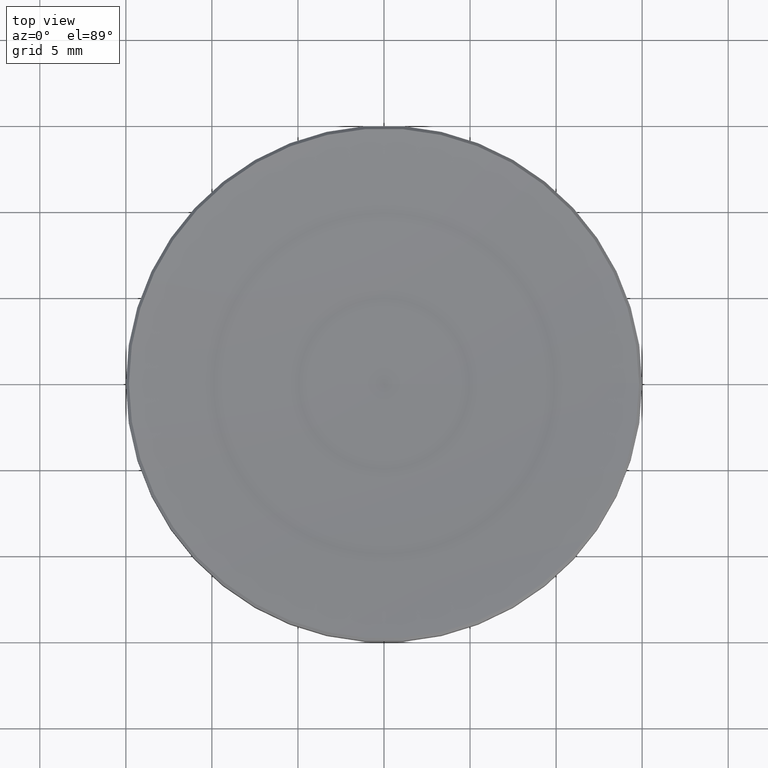
[diagram: clean part render]
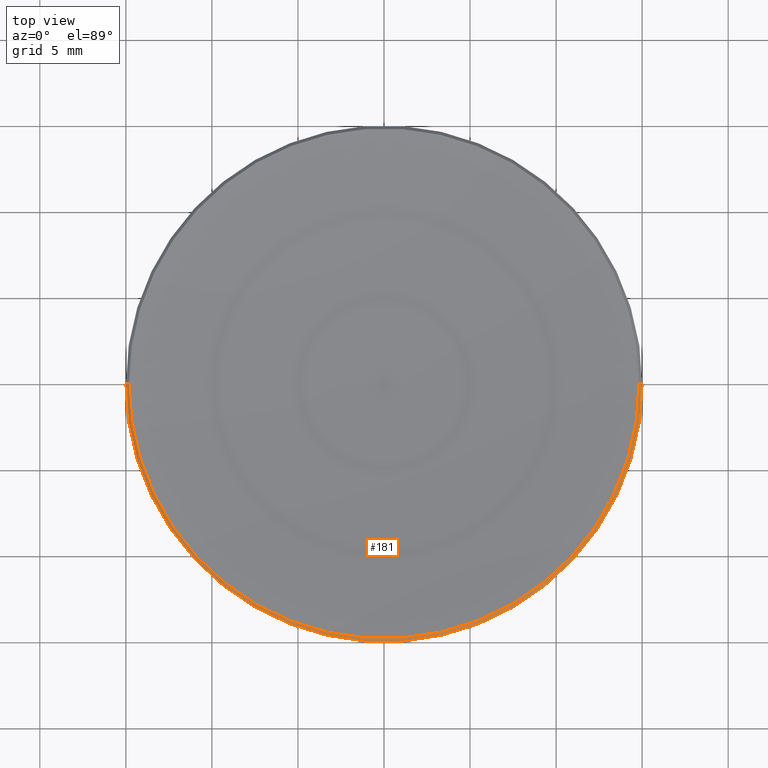
[diagram: same view with one face highlighted and labeled with its STEP entity id]
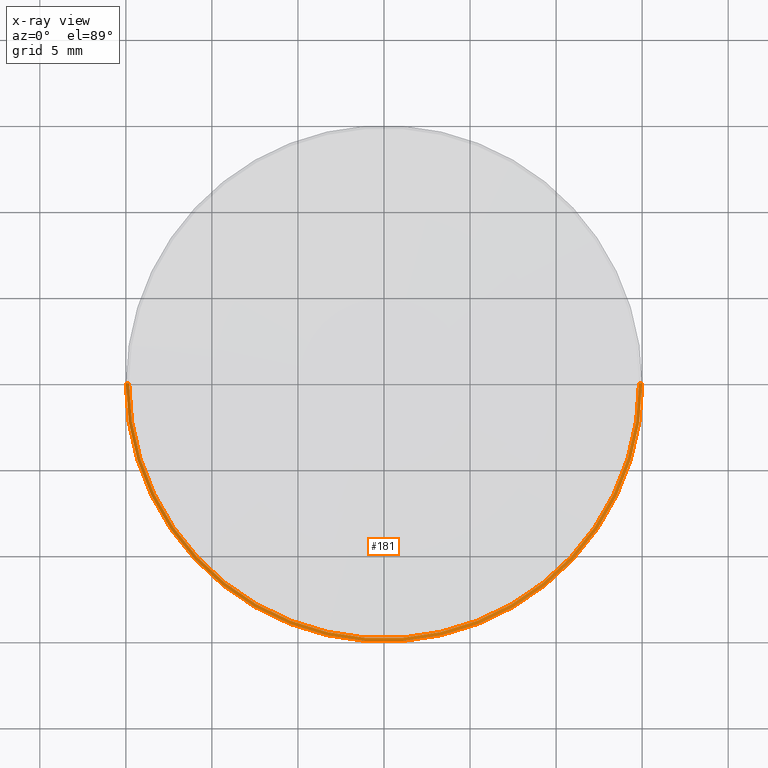
[diagram: x-ray of the same camera — body ghosted, the highlighted face saturated]
A machine part, top view. The second image highlights one B-rep face of the part: STEP entity #181.
The next image is the same camera in x-ray: the body ghosted, the highlighted face saturated — about 0% of this face is hidden behind the body in this view.
In plain terms, the highlighted conical surface has half-angle 45 deg.
Its self-contained STEP definition (entity closure, byte-faithful):
#18 = CARTESIAN_POINT ( 'NONE',  ( 14.82077471085186993, 1.815021431052878250E-15, 3.349225289148161089 ) ) ;
#20 = CARTESIAN_POINT ( 'NONE',  ( 0.000000000000000000, 0.000000000000000000, 3.349225289148161089 ) ) ;
#34 = CARTESIAN_POINT ( 'NONE',  ( 0.000000000000000000, 0.000000000000000000, 3.170000000000006146 ) ) ;
#37 = AXIS2_PLACEMENT_3D ( 'NONE', #256, #238, #74 ) ;
#41 = EDGE_CURVE ( 'NONE', #146, #106, #166, .T. ) ;
#51 = AXIS2_PLACEMENT_3D ( 'NONE', #34, #219, #220 ) ;
#74 = DIRECTION ( 'NONE',  ( 1.000000000000000000, 0.000000000000000000, 0.000000000000000000 ) ) ;
#78 = EDGE_CURVE ( 'NONE', #146, #171, #93, .T. ) ;
#83 = CARTESIAN_POINT ( 'NONE',  ( -15.00000000000000000, 1.836970198721029589E-15, 3.170000000000006146 ) ) ;
#85 = AXIS2_PLACEMENT_3D ( 'NONE', #20, #226, #156 ) ;
#90 = ORIENTED_EDGE ( 'NONE', *, *, #41, .F. ) ;
#93 = LINE ( 'NONE', #223, #208 ) ;
#95 = CIRCLE ( 'NONE', #51, 15.00000000000000000 ) ;
#97 = DIRECTION ( 'NONE',  ( 0.7071067811864962804, 8.659560562354306700E-17, -0.7071067811865988650 ) ) ;
#106 = VERTEX_POINT ( 'NONE', #264 ) ;
#119 = EDGE_CURVE ( 'NONE', #106, #126, #152, .T. ) ;
#123 = CONICAL_SURFACE ( 'NONE', #85, 14.82077471085186993, 0.7853981633973757814 ) ;
#126 = VERTEX_POINT ( 'NONE', #241 ) ;
#144 = ORIENTED_EDGE ( 'NONE', *, *, #119, .F. ) ;
#146 = VERTEX_POINT ( 'NONE', #149 ) ;
#149 = CARTESIAN_POINT ( 'NONE',  ( -14.82077471085196940, 1.815021431052890477E-15, 3.349225289148161089 ) ) ;
#151 = EDGE_CURVE ( 'NONE', #126, #171, #95, .T. ) ;
#152 = LINE ( 'NONE', #18, #227 ) ;
#156 = DIRECTION ( 'NONE',  ( -1.000000000000000000, 0.000000000000000000, 0.000000000000000000 ) ) ;
#166 = CIRCLE ( 'NONE', #37, 14.82077471085190723 ) ;
#167 = EDGE_LOOP ( 'NONE', ( #144, #90, #214, #251 ) ) ;
#171 = VERTEX_POINT ( 'NONE', #83 ) ;
#181 = ADVANCED_FACE ( 'NONE', ( #266 ), #123, .T. ) ;
#208 = VECTOR ( 'NONE', #239, 1000.000000000000000 ) ;
#214 = ORIENTED_EDGE ( 'NONE', *, *, #78, .T. ) ;
#219 = DIRECTION ( 'NONE',  ( 0.000000000000000000, 0.000000000000000000, -1.000000000000000000 ) ) ;
#220 = DIRECTION ( 'NONE',  ( -1.000000000000000000, 0.000000000000000000, 0.000000000000000000 ) ) ;
#223 = CARTESIAN_POINT ( 'NONE',  ( -14.82077471085186993, 0.000000000000000000, 3.349225289148161089 ) ) ;
#226 = DIRECTION ( 'NONE',  ( 0.000000000000000000, 0.000000000000000000, -1.000000000000000000 ) ) ;
#227 = VECTOR ( 'NONE', #97, 1000.000000000000000 ) ;
#238 = DIRECTION ( 'NONE',  ( -0.000000000000000000, -0.000000000000000000, 1.000000000000000000 ) ) ;
#239 = DIRECTION ( 'NONE',  ( -0.7071067811864962804, 0.000000000000000000, -0.7071067811865988650 ) ) ;
#241 = CARTESIAN_POINT ( 'NONE',  ( 15.00000000000000000, 0.000000000000000000, 3.170000000000006146 ) ) ;
#251 = ORIENTED_EDGE ( 'NONE', *, *, #151, .F. ) ;
#256 = CARTESIAN_POINT ( 'NONE',  ( 0.000000000000000000, 0.000000000000000000, 3.349225289148161089 ) ) ;
#264 = CARTESIAN_POINT ( 'NONE',  ( 14.82077471085196940, 0.000000000000000000, 3.349225289148161089 ) ) ;
#266 = FACE_OUTER_BOUND ( 'NONE', #167, .T. ) ;